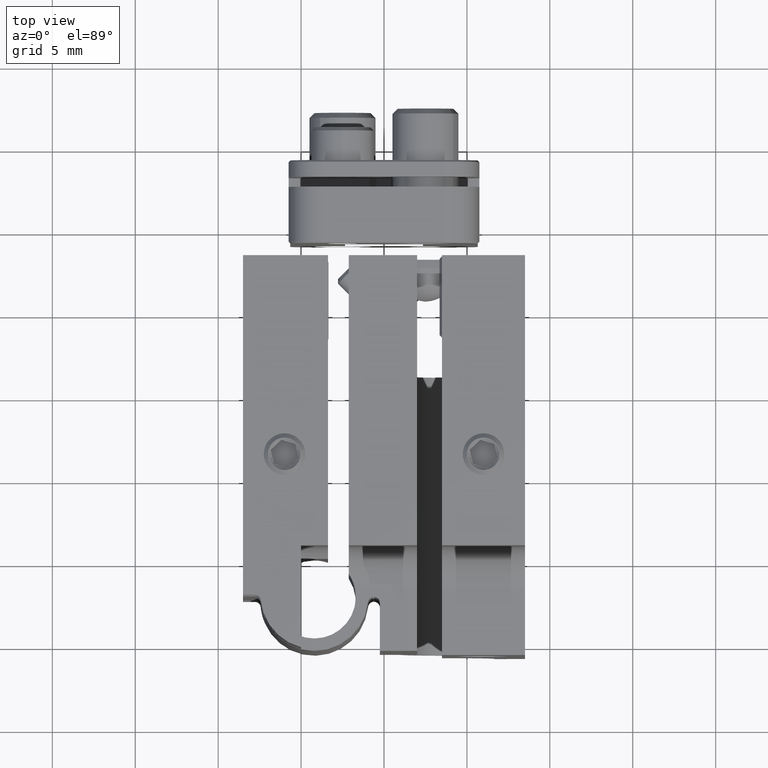
[diagram: clean part render]
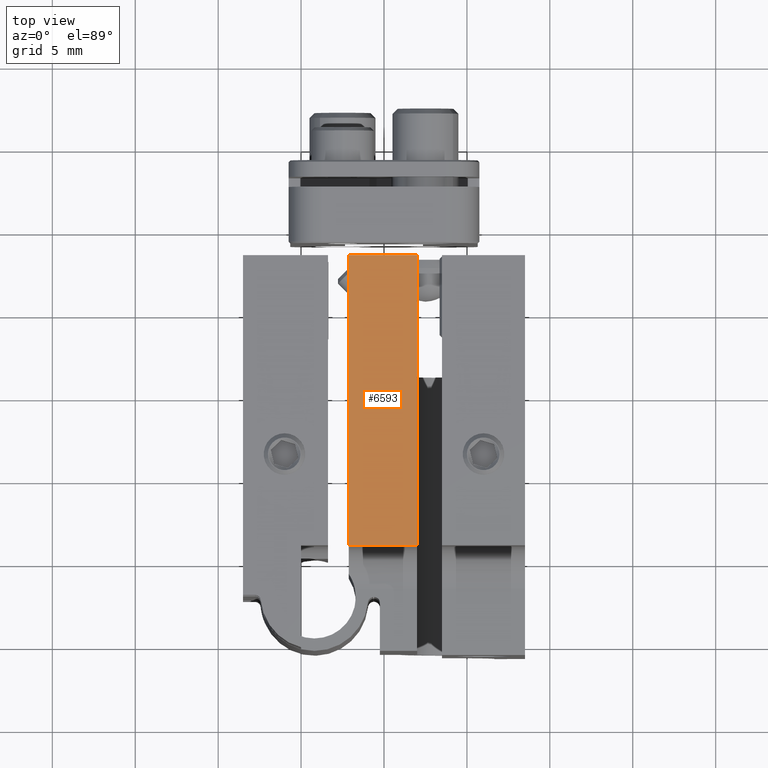
[diagram: same view with one face highlighted and labeled with its STEP entity id]
A machine part, top view. The second image highlights one B-rep face of the part: STEP entity #6593.
In plain terms, the highlighted planar face has unit normal (0, 0, -1).
Its self-contained STEP definition (entity closure, byte-faithful):
#3 = CARTESIAN_POINT ( 'NONE',  ( -17.55248658727139954, 5.857782386305952826, 32.68764634029930249 ) ) ;
#114 = VERTEX_POINT ( 'NONE', #11022 ) ;
#629 = VERTEX_POINT ( 'NONE', #6086 ) ;
#793 = CARTESIAN_POINT ( 'NONE',  ( -2.124999999999998668, 2.357782386305946609, 32.68764634029930960 ) ) ;
#844 = DIRECTION ( 'NONE',  ( -1.000000000000000000, 0.000000000000000000, -0.000000000000000000 ) ) ;
#891 = DIRECTION ( 'NONE',  ( 0.000000000000000000, 1.000000000000000000, 0.000000000000000000 ) ) ;
#1906 = DIRECTION ( 'NONE',  ( 0.000000000000000000, 0.000000000000000000, -1.000000000000000000 ) ) ;
#1973 = LINE ( 'NONE', #5543, #7663 ) ;
#2235 = VERTEX_POINT ( 'NONE', #11156 ) ;
#2283 = EDGE_CURVE ( 'NONE', #9642, #114, #5115, .T. ) ;
#2846 = PLANE ( 'NONE',  #3555 ) ;
#3306 = LINE ( 'NONE', #4981, #5443 ) ;
#3470 = FACE_OUTER_BOUND ( 'NONE', #6573, .T. ) ;
#3555 = AXIS2_PLACEMENT_3D ( 'NONE', #9801, #1906, #891 ) ;
#4140 = LINE ( 'NONE', #793, #10328 ) ;
#4174 = ORIENTED_EDGE ( 'NONE', *, *, #10865, .T. ) ;
#4299 = DIRECTION ( 'NONE',  ( 0.000000000000000000, -1.000000000000000000, 0.000000000000000000 ) ) ;
#4400 = ORIENTED_EDGE ( 'NONE', *, *, #6022, .T. ) ;
#4981 = CARTESIAN_POINT ( 'NONE',  ( 2.000000000000000000, -0.6422176136940561664, 32.68764634029930249 ) ) ;
#5115 = LINE ( 'NONE', #3, #7100 ) ;
#5443 = VECTOR ( 'NONE', #6796, 1000.000000000000000 ) ;
#5543 = CARTESIAN_POINT ( 'NONE',  ( 8.000000000000000000, 23.35778238630594572, 32.68764634029930960 ) ) ;
#6022 = EDGE_CURVE ( 'NONE', #629, #9642, #4140, .T. ) ;
#6086 = CARTESIAN_POINT ( 'NONE',  ( -2.124999999999998224, 23.35778238630594572, 32.68764634029930960 ) ) ;
#6573 = EDGE_LOOP ( 'NONE', ( #4400, #11034, #4174, #10633 ) ) ;
#6593 = ADVANCED_FACE ( 'NONE', ( #3470 ), #2846, .F. ) ;
#6796 = DIRECTION ( 'NONE',  ( 0.000000000000000000, 1.000000000000000000, 2.048885995248197414E-16 ) ) ;
#7100 = VECTOR ( 'NONE', #8630, 1000.000000000000000 ) ;
#7663 = VECTOR ( 'NONE', #844, 1000.000000000000000 ) ;
#8630 = DIRECTION ( 'NONE',  ( 1.000000000000000000, 0.000000000000000000, 0.000000000000000000 ) ) ;
#9609 = CARTESIAN_POINT ( 'NONE',  ( -2.124999999999998224, 5.857782386305952826, 32.68764634029930249 ) ) ;
#9642 = VERTEX_POINT ( 'NONE', #9609 ) ;
#9801 = CARTESIAN_POINT ( 'NONE',  ( 8.000000000000000000, 23.35778238630594572, 32.68764634029930960 ) ) ;
#10328 = VECTOR ( 'NONE', #4299, 1000.000000000000000 ) ;
#10633 = ORIENTED_EDGE ( 'NONE', *, *, #10994, .T. ) ;
#10865 = EDGE_CURVE ( 'NONE', #114, #2235, #3306, .T. ) ;
#10994 = EDGE_CURVE ( 'NONE', #2235, #629, #1973, .T. ) ;
#11022 = CARTESIAN_POINT ( 'NONE',  ( 1.999999999999998224, 5.857782386305952826, 32.68764634029930249 ) ) ;
#11034 = ORIENTED_EDGE ( 'NONE', *, *, #2283, .T. ) ;
#11156 = CARTESIAN_POINT ( 'NONE',  ( 2.000000000000000000, 23.35778238630594572, 32.68764634029930960 ) ) ;